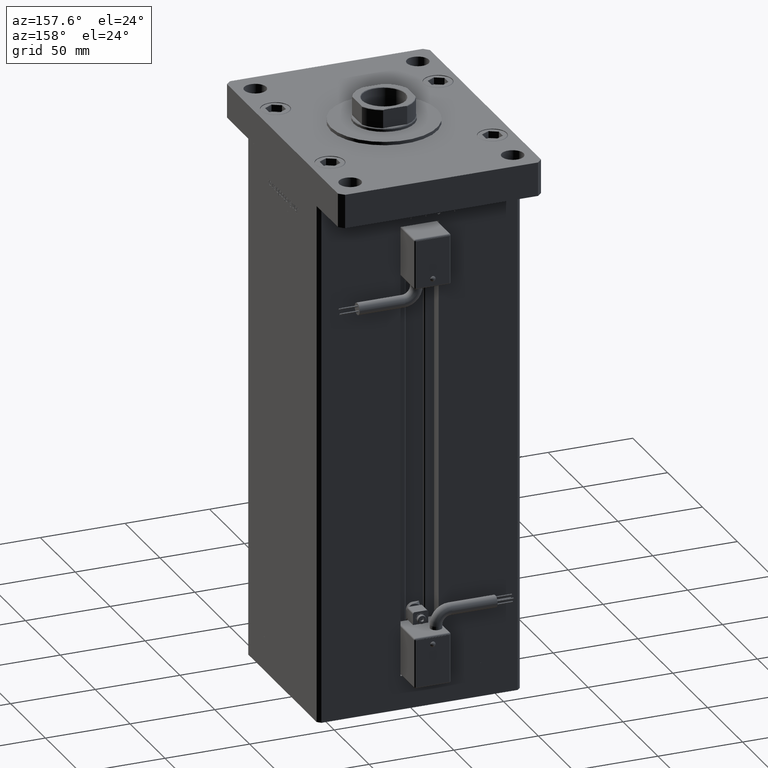
[diagram: clean part render]
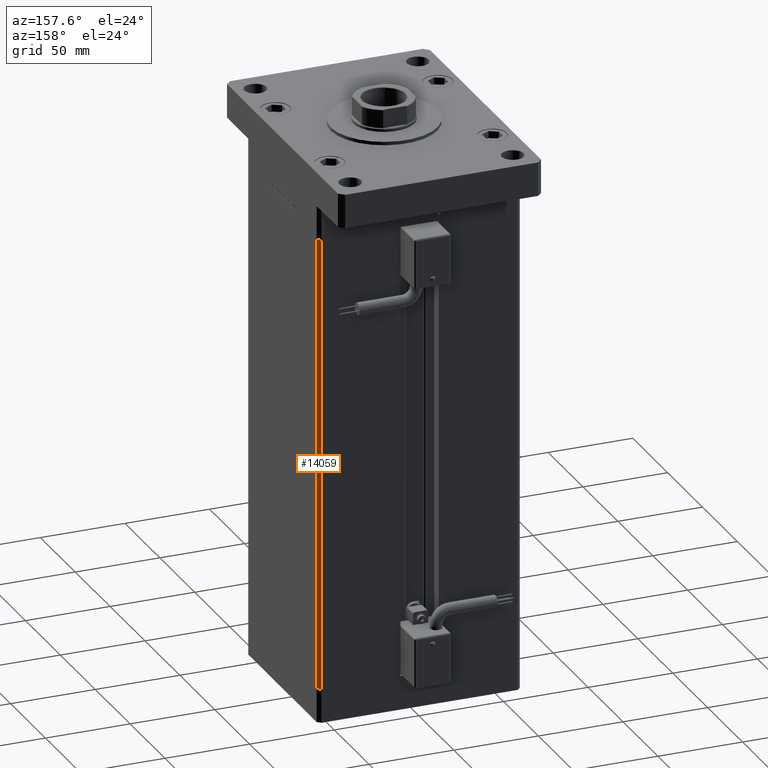
[diagram: same view with one face highlighted and labeled with its STEP entity id]
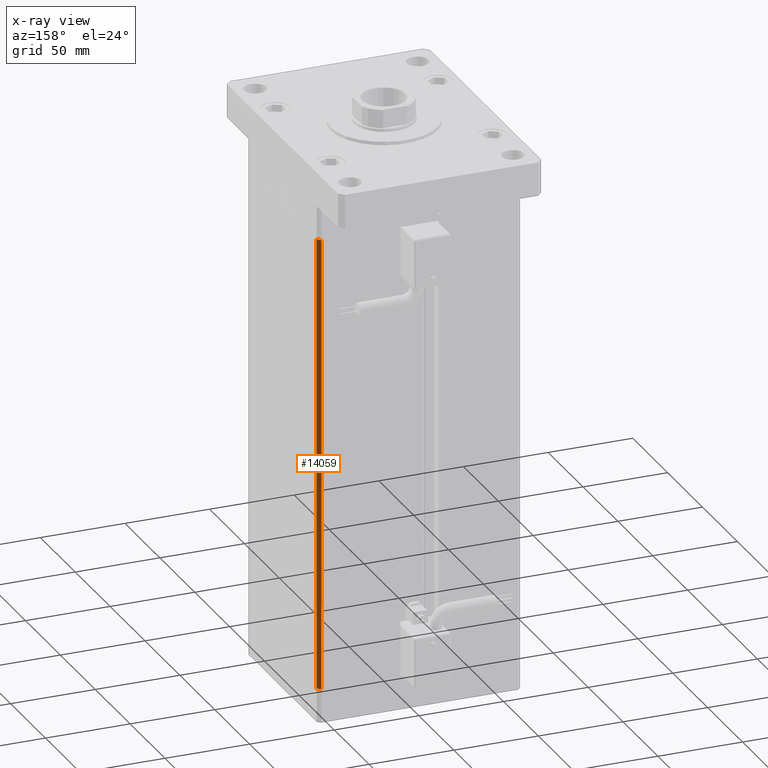
[diagram: x-ray of the same camera — body ghosted, the highlighted face saturated]
A machine part, auxiliary view. The second image highlights one B-rep face of the part: STEP entity #14059.
The next image is the same camera in x-ray: the body ghosted, the highlighted face saturated — about 0% of this face is hidden behind the body in this view.
In plain terms, the highlighted planar face has unit normal (0.7071, 0.7071, 0).
Its self-contained STEP definition (entity closure, byte-faithful):
#2175 = CARTESIAN_POINT ( 'NONE',  ( 60.00000000000001421, 49.00000000000000000, 268.5000000000000000 ) ) ;
#3996 = CARTESIAN_POINT ( 'NONE',  ( 57.99999999999999289, 51.00000000000000711, 268.5000000000000000 ) ) ;
#4165 = CARTESIAN_POINT ( 'NONE',  ( 57.99999999999999289, 51.00000000000000711, 0.000000000000000000 ) ) ;
#4987 = EDGE_CURVE ( 'NONE', #17927, #13149, #42358, .T. ) ;
#5384 = CARTESIAN_POINT ( 'NONE',  ( 60.00000000000001421, 49.00000000000000000, 0.000000000000000000 ) ) ;
#12192 = ORIENTED_EDGE ( 'NONE', *, *, #18237, .T. ) ;
#12492 = ORIENTED_EDGE ( 'NONE', *, *, #31621, .F. ) ;
#13149 = VERTEX_POINT ( 'NONE', #5384 ) ;
#13277 = LINE ( 'NONE', #4165, #30803 ) ;
#13844 = FACE_OUTER_BOUND ( 'NONE', #19980, .T. ) ;
#14059 = ADVANCED_FACE ( 'NONE', ( #13844 ), #48752, .T. ) ;
#14773 = EDGE_CURVE ( 'NONE', #36080, #13149, #13277, .T. ) ;
#17927 = VERTEX_POINT ( 'NONE', #51621 ) ;
#18237 = EDGE_CURVE ( 'NONE', #51414, #17927, #52424, .T. ) ;
#19980 = EDGE_LOOP ( 'NONE', ( #27067, #12492, #12192, #38420 ) ) ;
#25890 = DIRECTION ( 'NONE',  ( 0.7071067811865451302, 0.7071067811865500152, -0.000000000000000000 ) ) ;
#26748 = DIRECTION ( 'NONE',  ( -0.7071067811865500152, 0.7071067811865451302, 0.000000000000000000 ) ) ;
#27067 = ORIENTED_EDGE ( 'NONE', *, *, #14773, .F. ) ;
#30803 = VECTOR ( 'NONE', #49326, 1000.000000000000114 ) ;
#31621 = EDGE_CURVE ( 'NONE', #51414, #36080, #49921, .T. ) ;
#36080 = VERTEX_POINT ( 'NONE', #36472 ) ;
#36472 = CARTESIAN_POINT ( 'NONE',  ( 57.99999999999999289, 51.00000000000000711, 0.000000000000000000 ) ) ;
#37313 = DIRECTION ( 'NONE',  ( -0.000000000000000000, -0.000000000000000000, -1.000000000000000000 ) ) ;
#38420 = ORIENTED_EDGE ( 'NONE', *, *, #4987, .T. ) ;
#42134 = VECTOR ( 'NONE', #57122, 1000.000000000000114 ) ;
#42358 = LINE ( 'NONE', #2175, #44644 ) ;
#43039 = CARTESIAN_POINT ( 'NONE',  ( 57.99999999999999289, 51.00000000000000711, 268.5000000000000000 ) ) ;
#44644 = VECTOR ( 'NONE', #46462, 1000.000000000000000 ) ;
#46462 = DIRECTION ( 'NONE',  ( -0.000000000000000000, -0.000000000000000000, -1.000000000000000000 ) ) ;
#48588 = AXIS2_PLACEMENT_3D ( 'NONE', #49030, #25890, #26748 ) ;
#48752 = PLANE ( 'NONE',  #48588 ) ;
#49030 = CARTESIAN_POINT ( 'NONE',  ( 57.99999999999999289, 51.00000000000000711, 268.5000000000000000 ) ) ;
#49326 = DIRECTION ( 'NONE',  ( 0.7071067811865500152, -0.7071067811865451302, 0.000000000000000000 ) ) ;
#49921 = LINE ( 'NONE', #54614, #53149 ) ;
#51414 = VERTEX_POINT ( 'NONE', #3996 ) ;
#51621 = CARTESIAN_POINT ( 'NONE',  ( 60.00000000000001421, 49.00000000000000000, 268.5000000000000000 ) ) ;
#52424 = LINE ( 'NONE', #43039, #42134 ) ;
#53149 = VECTOR ( 'NONE', #37313, 1000.000000000000000 ) ;
#54614 = CARTESIAN_POINT ( 'NONE',  ( 57.99999999999999289, 51.00000000000000711, 268.5000000000000000 ) ) ;
#57122 = DIRECTION ( 'NONE',  ( 0.7071067811865500152, -0.7071067811865451302, 0.000000000000000000 ) ) ;